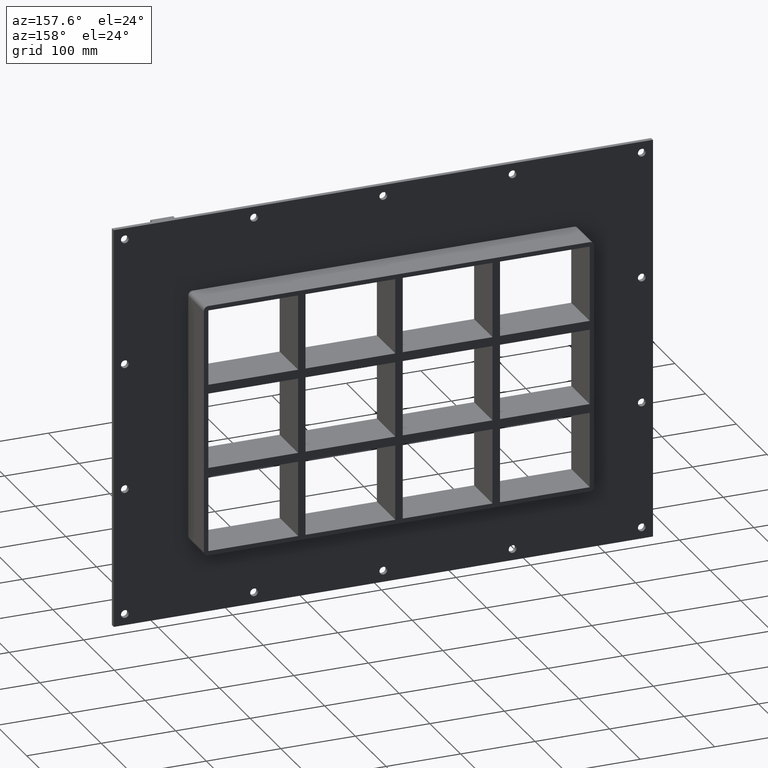
[diagram: clean part render]
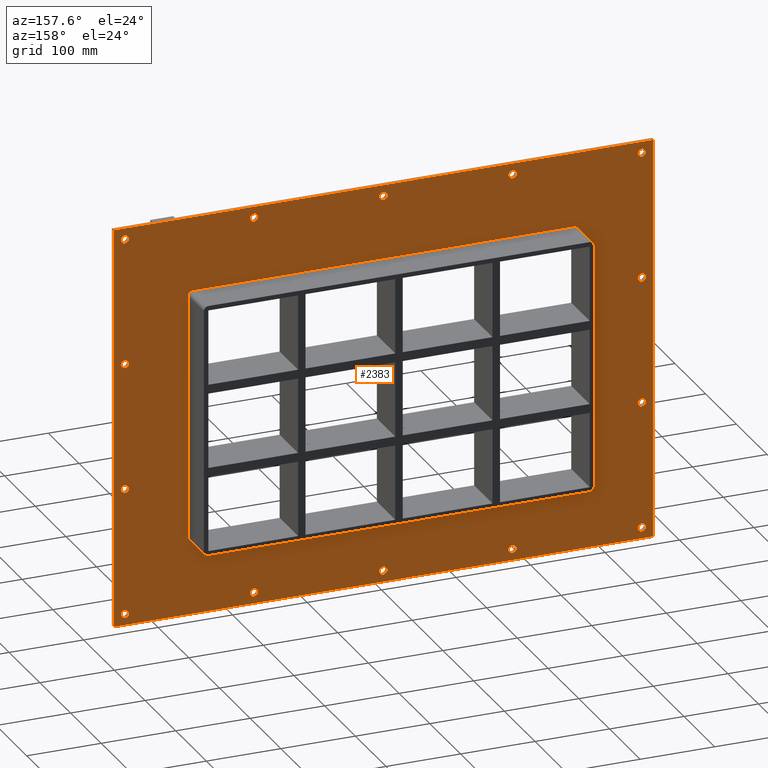
[diagram: same view with one face highlighted and labeled with its STEP entity id]
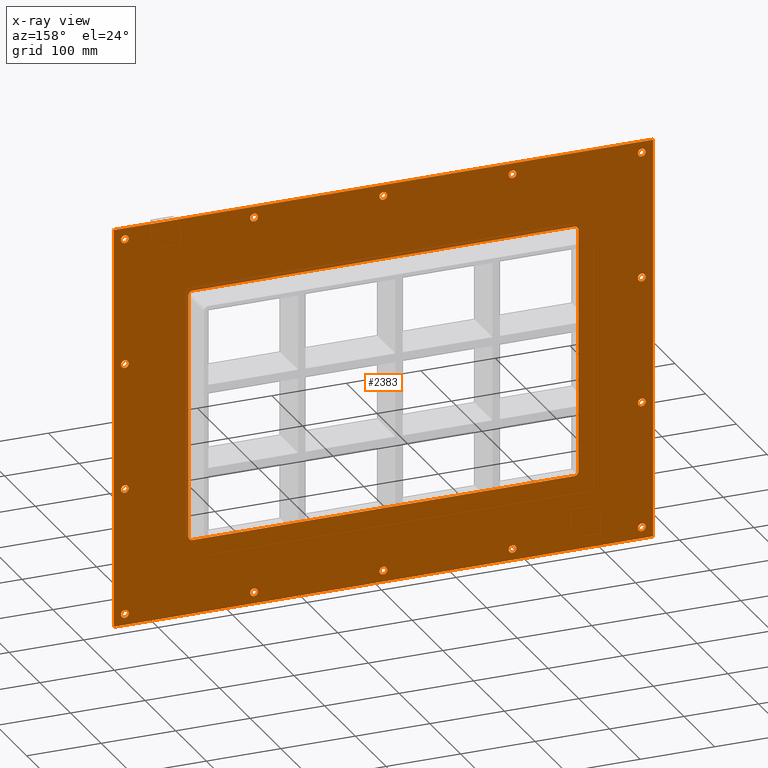
[diagram: x-ray of the same camera — body ghosted, the highlighted face saturated]
A machine part, auxiliary view. The second image highlights one B-rep face of the part: STEP entity #2383.
The next image is the same camera in x-ray: the body ghosted, the highlighted face saturated — about 0% of this face is hidden behind the body in this view.
In plain terms, the highlighted planar face has unit normal (0, 1, 0).
Its self-contained STEP definition (entity closure, byte-faithful):
#73=CARTESIAN_POINT('',(-352.25000000000017,5.999999999999943,-254.5));
#74=VERTEX_POINT('',#73);
#75=CARTESIAN_POINT('',(-347.00000000000017,5.999999999999943,-254.5));
#76=DIRECTION('',(0.0,-1.0,0.0));
#77=DIRECTION('',(1.0,0.0,0.0));
#78=AXIS2_PLACEMENT_3D('',#75,#76,#77);
#79=CIRCLE('',#78,5.25);
#80=EDGE_CURVE('',#74,#74,#79,.T.);
#101=CARTESIAN_POINT('',(341.74999999999989,5.999999999999943,-84.800000000000011));
#102=VERTEX_POINT('',#101);
#103=CARTESIAN_POINT('',(346.99999999999989,5.999999999999943,-84.800000000000011));
#104=DIRECTION('',(0.0,-1.0,0.0));
#105=DIRECTION('',(1.0,0.0,0.0));
#106=AXIS2_PLACEMENT_3D('',#103,#104,#105);
#107=CIRCLE('',#106,5.25);
#108=EDGE_CURVE('',#102,#102,#107,.T.);
#129=CARTESIAN_POINT('',(-352.25000000000017,5.999999999999943,-84.800000000000011));
#130=VERTEX_POINT('',#129);
#131=CARTESIAN_POINT('',(-347.00000000000017,5.999999999999943,-84.800000000000011));
#132=DIRECTION('',(0.0,-1.0,0.0));
#133=DIRECTION('',(1.0,0.0,0.0));
#134=AXIS2_PLACEMENT_3D('',#131,#132,#133);
#135=CIRCLE('',#134,5.25);
#136=EDGE_CURVE('',#130,#130,#135,.T.);
#157=CARTESIAN_POINT('',(341.74999999999989,5.999999999999943,84.899999999999977));
#158=VERTEX_POINT('',#157);
#159=CARTESIAN_POINT('',(346.99999999999989,5.999999999999943,84.899999999999977));
#160=DIRECTION('',(0.0,-1.0,0.0));
#161=DIRECTION('',(1.0,0.0,0.0));
#162=AXIS2_PLACEMENT_3D('',#159,#160,#161);
#163=CIRCLE('',#162,5.25);
#164=EDGE_CURVE('',#158,#158,#163,.T.);
#185=CARTESIAN_POINT('',(-352.25000000000017,5.999999999999943,84.899999999999977));
#186=VERTEX_POINT('',#185);
#187=CARTESIAN_POINT('',(-347.00000000000017,5.999999999999943,84.899999999999977));
#188=DIRECTION('',(0.0,-1.0,0.0));
#189=DIRECTION('',(1.0,0.0,0.0));
#190=AXIS2_PLACEMENT_3D('',#187,#188,#189);
#191=CIRCLE('',#190,5.25);
#192=EDGE_CURVE('',#186,#186,#191,.T.);
#213=CARTESIAN_POINT('',(-178.75000000000014,5.999999999999943,254.59999999999997));
#214=VERTEX_POINT('',#213);
#215=CARTESIAN_POINT('',(-173.50000000000017,5.999999999999943,254.59999999999997));
#216=DIRECTION('',(0.0,-1.0,0.0));
#217=DIRECTION('',(1.0,0.0,0.0));
#218=AXIS2_PLACEMENT_3D('',#215,#216,#217);
#219=CIRCLE('',#218,5.25);
#220=EDGE_CURVE('',#214,#214,#219,.T.);
#241=CARTESIAN_POINT('',(-178.75000000000014,5.999999999999943,-254.50000000000003));
#242=VERTEX_POINT('',#241);
#243=CARTESIAN_POINT('',(-173.50000000000017,5.999999999999943,-254.50000000000003));
#244=DIRECTION('',(0.0,-1.0,0.0));
#245=DIRECTION('',(1.0,0.0,0.0));
#246=AXIS2_PLACEMENT_3D('',#243,#244,#245);
#247=CIRCLE('',#246,5.25);
#248=EDGE_CURVE('',#242,#242,#247,.T.);
#269=CARTESIAN_POINT('',(-5.250000000000128,5.999999999999943,254.59999999999997));
#270=VERTEX_POINT('',#269);
#271=CARTESIAN_POINT('',(-1.421085E-013,5.999999999999943,254.59999999999997));
#272=DIRECTION('',(0.0,-1.0,0.0));
#273=DIRECTION('',(1.0,0.0,0.0));
#274=AXIS2_PLACEMENT_3D('',#271,#272,#273);
#275=CIRCLE('',#274,5.25);
#276=EDGE_CURVE('',#270,#270,#275,.T.);
#297=CARTESIAN_POINT('',(-5.250000000000128,5.999999999999943,-254.50000000000003));
#298=VERTEX_POINT('',#297);
#299=CARTESIAN_POINT('',(-1.421085E-013,5.999999999999943,-254.50000000000003));
#300=DIRECTION('',(0.0,-1.0,0.0));
#301=DIRECTION('',(1.0,0.0,0.0));
#302=AXIS2_PLACEMENT_3D('',#299,#300,#301);
#303=CIRCLE('',#302,5.25);
#304=EDGE_CURVE('',#298,#298,#303,.T.);
#325=CARTESIAN_POINT('',(168.24999999999989,5.999999999999943,254.59999999999997));
#326=VERTEX_POINT('',#325);
#327=CARTESIAN_POINT('',(173.49999999999989,5.999999999999943,254.59999999999997));
#328=DIRECTION('',(0.0,-1.0,0.0));
#329=DIRECTION('',(1.0,0.0,0.0));
#330=AXIS2_PLACEMENT_3D('',#327,#328,#329);
#331=CIRCLE('',#330,5.25);
#332=EDGE_CURVE('',#326,#326,#331,.T.);
#353=CARTESIAN_POINT('',(168.24999999999989,5.999999999999943,-254.50000000000003));
#354=VERTEX_POINT('',#353);
#355=CARTESIAN_POINT('',(173.49999999999989,5.999999999999943,-254.50000000000003));
#356=DIRECTION('',(0.0,-1.0,0.0));
#357=DIRECTION('',(1.0,0.0,0.0));
#358=AXIS2_PLACEMENT_3D('',#355,#356,#357);
#359=CIRCLE('',#358,5.25);
#360=EDGE_CURVE('',#354,#354,#359,.T.);
#381=CARTESIAN_POINT('',(341.74999999999989,5.999999999999943,-254.50000000000003));
#382=VERTEX_POINT('',#381);
#383=CARTESIAN_POINT('',(346.99999999999989,5.999999999999943,-254.50000000000003));
#384=DIRECTION('',(0.0,-1.0,0.0));
#385=DIRECTION('',(1.0,0.0,0.0));
#386=AXIS2_PLACEMENT_3D('',#383,#384,#385);
#387=CIRCLE('',#386,5.25);
#388=EDGE_CURVE('',#382,#382,#387,.T.);
#409=CARTESIAN_POINT('',(-352.25000000000017,5.999999999999943,254.59999999999997));
#410=VERTEX_POINT('',#409);
#411=CARTESIAN_POINT('',(-347.00000000000017,5.999999999999943,254.59999999999997));
#412=DIRECTION('',(0.0,-1.0,0.0));
#413=DIRECTION('',(1.0,0.0,0.0));
#414=AXIS2_PLACEMENT_3D('',#411,#412,#413);
#415=CIRCLE('',#414,5.25);
#416=EDGE_CURVE('',#410,#410,#415,.T.);
#437=CARTESIAN_POINT('',(341.74999999999989,5.999999999999943,254.59999999999997));
#438=VERTEX_POINT('',#437);
#439=CARTESIAN_POINT('',(346.99999999999989,5.999999999999943,254.59999999999997));
#440=DIRECTION('',(0.0,-1.0,0.0));
#441=DIRECTION('',(1.0,0.0,0.0));
#442=AXIS2_PLACEMENT_3D('',#439,#440,#441);
#443=CIRCLE('',#442,5.25);
#444=EDGE_CURVE('',#438,#438,#443,.T.);
#2232=CARTESIAN_POINT('',(-4.050600E-014,6.000000000000001,0.0));
#2233=DIRECTION('',(0.0,1.0,0.0));
#2234=DIRECTION('',(0.0,0.0,1.0));
#2235=AXIS2_PLACEMENT_3D('',#2232,#2233,#2234);
#2236=PLANE('',#2235);
#2237=CARTESIAN_POINT('',(-362.0,6.000000000000001,269.5));
#2238=VERTEX_POINT('',#2237);
#2239=CARTESIAN_POINT('',(362.0,6.000000000000001,269.5));
#2240=VERTEX_POINT('',#2239);
#2241=CARTESIAN_POINT('',(-362.0,6.000000000000001,269.5));
#2242=DIRECTION('',(1.0,0.0,0.0));
#2243=VECTOR('',#2242,724.0);
#2244=LINE('',#2241,#2243);
#2245=EDGE_CURVE('',#2238,#2240,#2244,.T.);
#2246=ORIENTED_EDGE('',*,*,#2245,.T.);
#2247=CARTESIAN_POINT('',(362.0,6.000000000000001,-269.5));
#2248=VERTEX_POINT('',#2247);
#2249=CARTESIAN_POINT('',(361.99999999999994,6.000000000000001,269.5));
#2250=DIRECTION('',(0.0,0.0,-1.0));
#2251=VECTOR('',#2250,539.0);
#2252=LINE('',#2249,#2251);
#2253=EDGE_CURVE('',#2240,#2248,#2252,.T.);
#2254=ORIENTED_EDGE('',*,*,#2253,.T.);
#2255=CARTESIAN_POINT('',(-362.0,6.000000000000001,-269.5));
#2256=VERTEX_POINT('',#2255);
#2257=CARTESIAN_POINT('',(361.99999999999994,6.000000000000001,-269.5));
#2258=DIRECTION('',(-1.0,0.0,0.0));
#2259=VECTOR('',#2258,724.0);
#2260=LINE('',#2257,#2259);
#2261=EDGE_CURVE('',#2248,#2256,#2260,.T.);
#2262=ORIENTED_EDGE('',*,*,#2261,.T.);
#2263=CARTESIAN_POINT('',(-362.0,6.000000000000001,-269.5));
#2264=DIRECTION('',(0.0,0.0,1.0));
#2265=VECTOR('',#2264,539.0);
#2266=LINE('',#2263,#2265);
#2267=EDGE_CURVE('',#2256,#2238,#2266,.T.);
#2268=ORIENTED_EDGE('',*,*,#2267,.T.);
#2269=EDGE_LOOP('',(#2246,#2254,#2262,#2268));
#2270=FACE_OUTER_BOUND('',#2269,.T.);
#2271=ORIENTED_EDGE('',*,*,#80,.T.);
#2272=EDGE_LOOP('',(#2271));
#2273=FACE_BOUND('',#2272,.T.);
#2274=ORIENTED_EDGE('',*,*,#108,.T.);
#2275=EDGE_LOOP('',(#2274));
#2276=FACE_BOUND('',#2275,.T.);
#2277=ORIENTED_EDGE('',*,*,#136,.T.);
#2278=EDGE_LOOP('',(#2277));
#2279=FACE_BOUND('',#2278,.T.);
#2280=ORIENTED_EDGE('',*,*,#164,.T.);
#2281=EDGE_LOOP('',(#2280));
#2282=FACE_BOUND('',#2281,.T.);
#2283=ORIENTED_EDGE('',*,*,#192,.T.);
#2284=EDGE_LOOP('',(#2283));
#2285=FACE_BOUND('',#2284,.T.);
#2286=ORIENTED_EDGE('',*,*,#220,.T.);
#2287=EDGE_LOOP('',(#2286));
#2288=FACE_BOUND('',#2287,.T.);
#2289=ORIENTED_EDGE('',*,*,#248,.T.);
#2290=EDGE_LOOP('',(#2289));
#2291=FACE_BOUND('',#2290,.T.);
#2292=ORIENTED_EDGE('',*,*,#276,.T.);
#2293=EDGE_LOOP('',(#2292));
#2294=FACE_BOUND('',#2293,.T.);
#2295=ORIENTED_EDGE('',*,*,#304,.T.);
#2296=EDGE_LOOP('',(#2295));
#2297=FACE_BOUND('',#2296,.T.);
#2298=ORIENTED_EDGE('',*,*,#332,.T.);
#2299=EDGE_LOOP('',(#2298));
#2300=FACE_BOUND('',#2299,.T.);
#2301=ORIENTED_EDGE('',*,*,#360,.T.);
#2302=EDGE_LOOP('',(#2301));
#2303=FACE_BOUND('',#2302,.T.);
#2304=ORIENTED_EDGE('',*,*,#388,.T.);
#2305=EDGE_LOOP('',(#2304));
#2306=FACE_BOUND('',#2305,.T.);
#2307=ORIENTED_EDGE('',*,*,#416,.T.);
#2308=EDGE_LOOP('',(#2307));
#2309=FACE_BOUND('',#2308,.T.);
#2310=ORIENTED_EDGE('',*,*,#444,.T.);
#2311=EDGE_LOOP('',(#2310));
#2312=FACE_BOUND('',#2311,.T.);
#2313=CARTESIAN_POINT('',(-262.0,6.000000000000001,163.50000000000009));
#2314=VERTEX_POINT('',#2313);
#2315=CARTESIAN_POINT('',(-256.0,6.000000000000001,169.50000000000011));
#2316=VERTEX_POINT('',#2315);
#2317=CARTESIAN_POINT('',(-256.0,6.000000000000001,163.50000000000009));
#2318=DIRECTION('',(0.0,1.0,0.0));
#2319=DIRECTION('',(-0.707106781186548,0.0,0.707106781186548));
#2320=AXIS2_PLACEMENT_3D('',#2317,#2318,#2319);
#2321=CIRCLE('',#2320,6.000000000000002);
#2322=EDGE_CURVE('',#2314,#2316,#2321,.T.);
#2323=ORIENTED_EDGE('',*,*,#2322,.F.);
#2324=CARTESIAN_POINT('',(-262.0,6.000000000000001,-163.49999999999994));
#2325=VERTEX_POINT('',#2324);
#2326=CARTESIAN_POINT('',(-262.0,6.000000000000001,-163.49999999999994));
#2327=DIRECTION('',(0.0,0.0,1.0));
#2328=VECTOR('',#2327,327.0);
#2329=LINE('',#2326,#2328);
#2330=EDGE_CURVE('',#2325,#2314,#2329,.T.);
#2331=ORIENTED_EDGE('',*,*,#2330,.F.);
#2332=CARTESIAN_POINT('',(-256.0,6.000000000000001,-169.49999999999994));
#2333=VERTEX_POINT('',#2332);
#2334=CARTESIAN_POINT('',(-256.0,6.000000000000001,-163.49999999999994));
#2335=DIRECTION('',(0.0,1.0,0.0));
#2336=DIRECTION('',(-0.707106781186548,0.0,-0.707106781186548));
#2337=AXIS2_PLACEMENT_3D('',#2334,#2335,#2336);
#2338=CIRCLE('',#2337,6.000000000000002);
#2339=EDGE_CURVE('',#2333,#2325,#2338,.T.);
#2340=ORIENTED_EDGE('',*,*,#2339,.F.);
#2341=CARTESIAN_POINT('',(256.0,6.000000000000001,-169.49999999999994));
#2342=VERTEX_POINT('',#2341);
#2343=CARTESIAN_POINT('',(256.0,6.000000000000001,-169.49999999999994));
#2344=DIRECTION('',(-1.0,0.0,0.0));
#2345=VECTOR('',#2344,512.0);
#2346=LINE('',#2343,#2345);
#2347=EDGE_CURVE('',#2342,#2333,#2346,.T.);
#2348=ORIENTED_EDGE('',*,*,#2347,.F.);
#2349=CARTESIAN_POINT('',(262.0,6.000000000000001,-163.49999999999994));
#2350=VERTEX_POINT('',#2349);
#2351=CARTESIAN_POINT('',(256.0,6.000000000000001,-163.49999999999994));
#2352=DIRECTION('',(0.0,1.0,0.0));
#2353=DIRECTION('',(0.707106781186548,0.0,-0.707106781186548));
#2354=AXIS2_PLACEMENT_3D('',#2351,#2352,#2353);
#2355=CIRCLE('',#2354,6.000000000000002);
#2356=EDGE_CURVE('',#2350,#2342,#2355,.T.);
#2357=ORIENTED_EDGE('',*,*,#2356,.F.);
#2358=CARTESIAN_POINT('',(262.0,6.000000000000001,163.50000000000009));
#2359=VERTEX_POINT('',#2358);
#2360=CARTESIAN_POINT('',(262.0,6.000000000000001,163.50000000000009));
#2361=DIRECTION('',(0.0,0.0,-1.0));
#2362=VECTOR('',#2361,327.0);
#2363=LINE('',#2360,#2362);
#2364=EDGE_CURVE('',#2359,#2350,#2363,.T.);
#2365=ORIENTED_EDGE('',*,*,#2364,.F.);
#2366=CARTESIAN_POINT('',(256.0,6.000000000000001,169.50000000000011));
#2367=VERTEX_POINT('',#2366);
#2368=CARTESIAN_POINT('',(256.0,6.000000000000001,163.50000000000009));
#2369=DIRECTION('',(0.0,1.0,0.0));
#2370=DIRECTION('',(0.707106781186548,0.0,0.707106781186548));
#2371=AXIS2_PLACEMENT_3D('',#2368,#2369,#2370);
#2372=CIRCLE('',#2371,6.000000000000002);
#2373=EDGE_CURVE('',#2367,#2359,#2372,.T.);
#2374=ORIENTED_EDGE('',*,*,#2373,.F.);
#2375=CARTESIAN_POINT('',(-256.0,6.000000000000001,169.50000000000011));
#2376=DIRECTION('',(1.0,0.0,0.0));
#2377=VECTOR('',#2376,512.0);
#2378=LINE('',#2375,#2377);
#2379=EDGE_CURVE('',#2316,#2367,#2378,.T.);
#2380=ORIENTED_EDGE('',*,*,#2379,.F.);
#2381=EDGE_LOOP('',(#2323,#2331,#2340,#2348,#2357,#2365,#2374,#2380));
#2382=FACE_BOUND('',#2381,.T.);
#2383=ADVANCED_FACE('',(#2270,#2273,#2276,#2279,#2282,#2285,#2288,#2291,#2294,#2297,#2300,#2303,#2306,#2309,#2312,#2382),#2236,.T.);